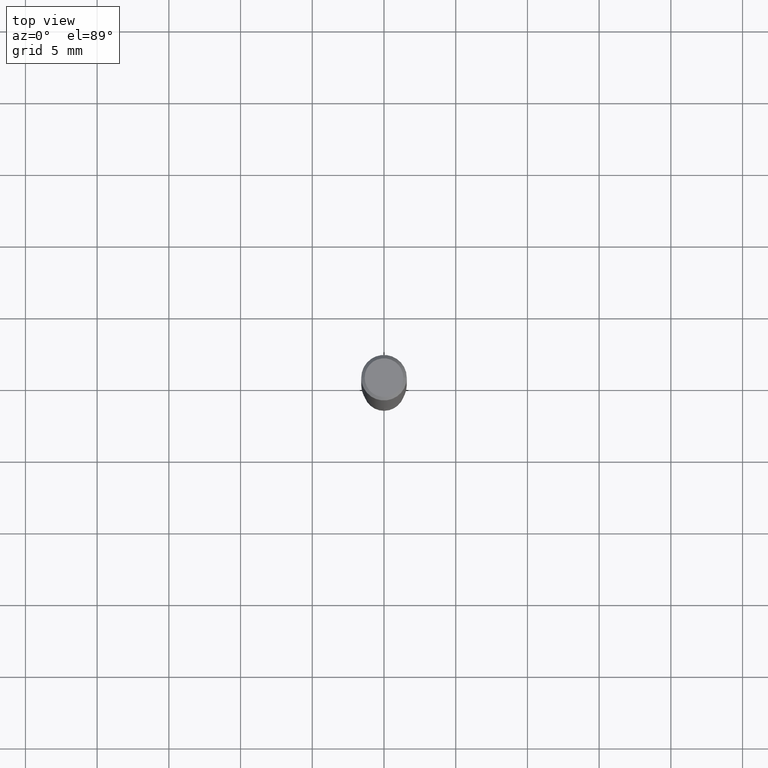
[diagram: clean part render]
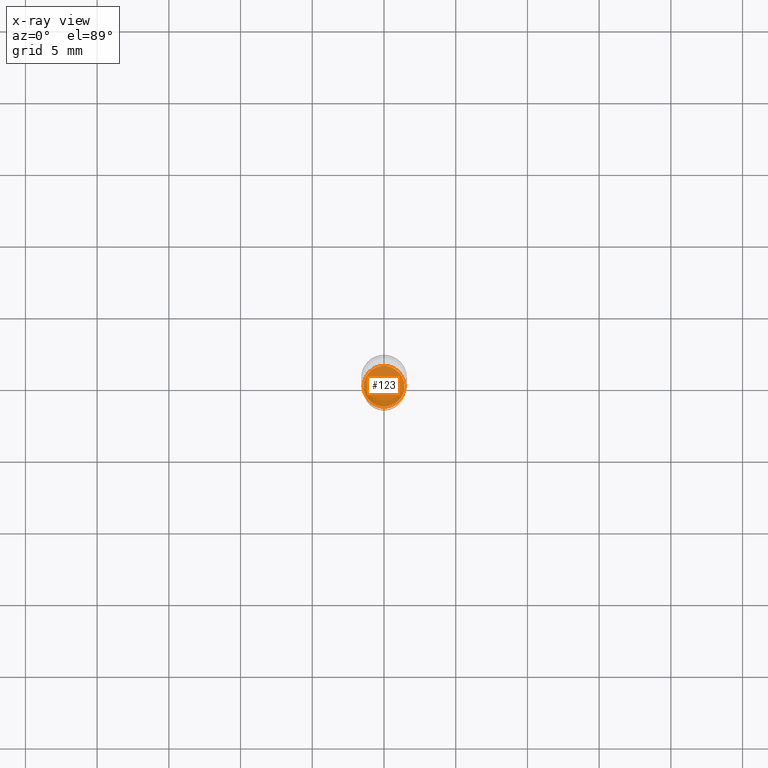
[diagram: x-ray — body ghosted, one internal face saturated and labeled with its STEP entity id]
A machine part, top view, then the same camera in x-ray: the body is ghosted and one INTERNAL B-rep face — a face not visible from any outside direction — is saturated and labeled: STEP entity #123.
In plain terms, the highlighted planar face has unit normal (-0, 0, 1).
Its self-contained STEP definition (entity closure, byte-faithful):
#1 = AXIS2_PLACEMENT_3D ( 'NONE', #229, #191, #290 ) ;
#9 = EDGE_CURVE ( 'NONE', #314, #244, #192, .T. ) ;
#12 = AXIS2_PLACEMENT_3D ( 'NONE', #227, #487, #470 ) ;
#15 = EDGE_LOOP ( 'NONE', ( #349, #312 ) ) ;
#17 = DIRECTION ( 'NONE',  ( 1.000000000000000000, -6.982962677686264344E-15, 0.000000000000000000 ) ) ;
#30 = PLANE ( 'NONE',  #12 ) ;
#98 = CARTESIAN_POINT ( 'NONE',  ( 0.05599999999999999423, -5.149934974793636687E-15, -1.362999999999999545 ) ) ;
#123 = ADVANCED_FACE ( 'NONE', ( #437 ), #30, .F. ) ;
#136 = CARTESIAN_POINT ( 'NONE',  ( 3.333173982830340069E-29, -4.758889064843206477E-15, -1.362999999999999545 ) ) ;
#146 = CARTESIAN_POINT ( 'NONE',  ( -0.05599999999999999423, -4.358335905643439608E-15, -1.362999999999999545 ) ) ;
#155 = CIRCLE ( 'NONE', #1, 0.05599999999999999423 ) ;
#191 = DIRECTION ( 'NONE',  ( -2.445468806185136597E-29, 3.491481338843145583E-15, 1.000000000000000000 ) ) ;
#192 = CIRCLE ( 'NONE', #489, 0.05599999999999999423 ) ;
#227 = CARTESIAN_POINT ( 'NONE',  ( 7.976231677067008516E-29, 1.890233819736063365E-15, -1.362999999999999545 ) ) ;
#229 = CARTESIAN_POINT ( 'NONE',  ( 3.333173982830340069E-29, -4.758889064843206477E-15, -1.362999999999999545 ) ) ;
#244 = VERTEX_POINT ( 'NONE', #146 ) ;
#290 = DIRECTION ( 'NONE',  ( 1.000000000000000000, -6.982962677686264344E-15, 0.000000000000000000 ) ) ;
#312 = ORIENTED_EDGE ( 'NONE', *, *, #350, .F. ) ;
#314 = VERTEX_POINT ( 'NONE', #98 ) ;
#321 = DIRECTION ( 'NONE',  ( -2.445468806185136597E-29, 3.491481338843145583E-15, 1.000000000000000000 ) ) ;
#349 = ORIENTED_EDGE ( 'NONE', *, *, #9, .F. ) ;
#350 = EDGE_CURVE ( 'NONE', #244, #314, #155, .T. ) ;
#437 = FACE_OUTER_BOUND ( 'NONE', #15, .T. ) ;
#470 = DIRECTION ( 'NONE',  ( 1.000000000000000000, -6.982962677686265922E-15, 4.876176775795935793E-29 ) ) ;
#487 = DIRECTION ( 'NONE',  ( -2.438088387897960049E-29, 3.491481338843145188E-15, 1.000000000000000000 ) ) ;
#489 = AXIS2_PLACEMENT_3D ( 'NONE', #136, #321, #17 ) ;